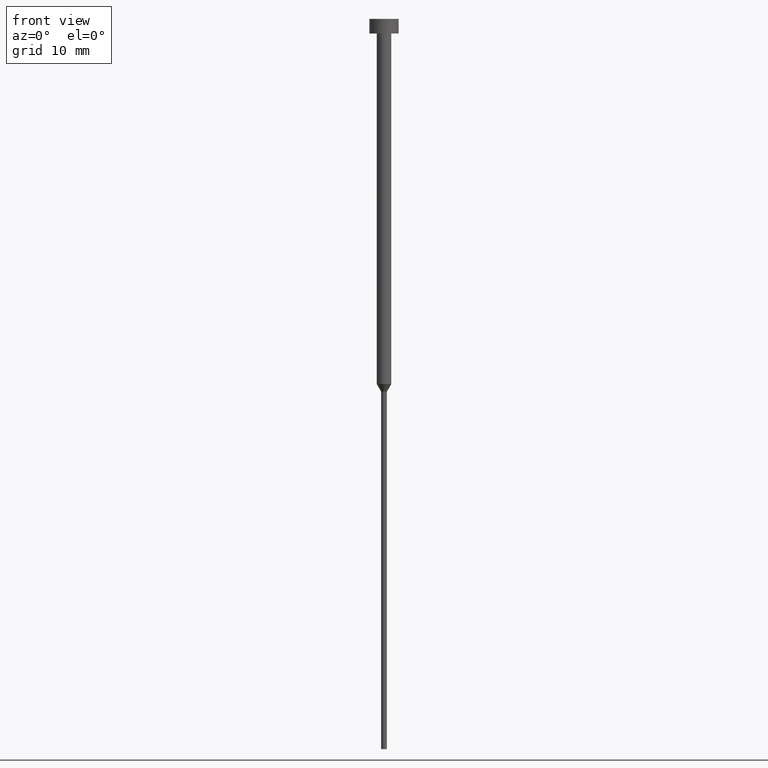
[diagram: clean part render]
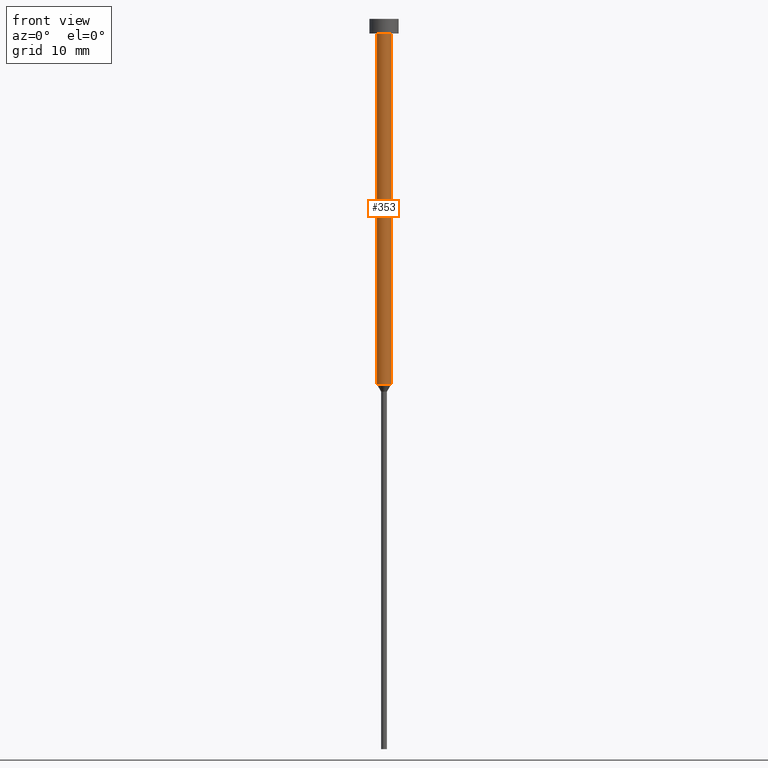
[diagram: same view with one face highlighted and labeled with its STEP entity id]
A machine part, front view. The second image highlights one B-rep face of the part: STEP entity #353.
In plain terms, the highlighted cylindrical surface (edge-blend (fillet) strip) has radius 1 mm, axis along (-0, -0, 1).
Its self-contained STEP definition (entity closure, byte-faithful):
#1 = CARTESIAN_POINT ( 'NONE',  ( -1.000000000000003109, 1.224646799147356905E-16, -50.00000000000000000 ) ) ;
#9 = AXIS2_PLACEMENT_3D ( 'NONE', #196, #279, #306 ) ;
#11 = VERTEX_POINT ( 'NONE', #146 ) ;
#17 = CIRCLE ( 'NONE', #220, 1.000000000000003553 ) ;
#20 = DIRECTION ( 'NONE',  ( -0.000000000000000000, -0.000000000000000000, 1.000000000000000000 ) ) ;
#23 = LINE ( 'NONE', #238, #232 ) ;
#35 = VERTEX_POINT ( 'NONE', #285 ) ;
#52 = DIRECTION ( 'NONE',  ( -0.000000000000000000, -0.000000000000000000, 1.000000000000000000 ) ) ;
#74 = DIRECTION ( 'NONE',  ( -0.000000000000000000, -0.000000000000000000, 1.000000000000000000 ) ) ;
#76 = DIRECTION ( 'NONE',  ( 1.000000000000000000, 0.000000000000000000, 0.000000000000000000 ) ) ;
#83 = VERTEX_POINT ( 'NONE', #288 ) ;
#91 = EDGE_CURVE ( 'NONE', #278, #35, #23, .T. ) ;
#92 = EDGE_CURVE ( 'NONE', #278, #11, #166, .T. ) ;
#99 = EDGE_CURVE ( 'NONE', #35, #83, #17, .T. ) ;
#110 = EDGE_LOOP ( 'NONE', ( #293, #323, #251, #159 ) ) ;
#118 = CYLINDRICAL_SURFACE ( 'NONE', #9, 1.000000000000003331 ) ;
#133 = CARTESIAN_POINT ( 'NONE',  ( 0.000000000000000000, 0.000000000000000000, -50.00000000000000000 ) ) ;
#146 = CARTESIAN_POINT ( 'NONE',  ( 1.000000000000003109, 0.000000000000000000, -50.00000000000000000 ) ) ;
#151 = LINE ( 'NONE', #301, #192 ) ;
#154 = DIRECTION ( 'NONE',  ( -0.000000000000000000, -0.000000000000000000, 1.000000000000000000 ) ) ;
#159 = ORIENTED_EDGE ( 'NONE', *, *, #99, .F. ) ;
#166 = CIRCLE ( 'NONE', #324, 1.000000000000003109 ) ;
#192 = VECTOR ( 'NONE', #74, 1000.000000000000000 ) ;
#196 = CARTESIAN_POINT ( 'NONE',  ( 0.000000000000000000, 0.000000000000000000, 0.000000000000000000 ) ) ;
#199 = FACE_OUTER_BOUND ( 'NONE', #110, .T. ) ;
#207 = CARTESIAN_POINT ( 'NONE',  ( 0.000000000000000000, 0.000000000000000000, -2.000000000000000444 ) ) ;
#220 = AXIS2_PLACEMENT_3D ( 'NONE', #207, #20, #76 ) ;
#232 = VECTOR ( 'NONE', #52, 1000.000000000000000 ) ;
#238 = CARTESIAN_POINT ( 'NONE',  ( -1.000000000000003331, 1.224646799147357151E-16, 0.000000000000000000 ) ) ;
#251 = ORIENTED_EDGE ( 'NONE', *, *, #289, .T. ) ;
#278 = VERTEX_POINT ( 'NONE', #1 ) ;
#279 = DIRECTION ( 'NONE',  ( -0.000000000000000000, -0.000000000000000000, 1.000000000000000000 ) ) ;
#285 = CARTESIAN_POINT ( 'NONE',  ( -1.000000000000003553, 1.224646799147357398E-16, -2.000000000000000444 ) ) ;
#288 = CARTESIAN_POINT ( 'NONE',  ( 1.000000000000003553, 0.000000000000000000, -2.000000000000000444 ) ) ;
#289 = EDGE_CURVE ( 'NONE', #11, #83, #151, .T. ) ;
#293 = ORIENTED_EDGE ( 'NONE', *, *, #91, .F. ) ;
#301 = CARTESIAN_POINT ( 'NONE',  ( 1.000000000000003331, 0.000000000000000000, 0.000000000000000000 ) ) ;
#306 = DIRECTION ( 'NONE',  ( 1.000000000000000000, 0.000000000000000000, 0.000000000000000000 ) ) ;
#316 = DIRECTION ( 'NONE',  ( 1.000000000000000000, 0.000000000000000000, 0.000000000000000000 ) ) ;
#323 = ORIENTED_EDGE ( 'NONE', *, *, #92, .T. ) ;
#324 = AXIS2_PLACEMENT_3D ( 'NONE', #133, #154, #316 ) ;
#353 = ADVANCED_FACE ( 'NONE', ( #199 ), #118, .T. ) ;